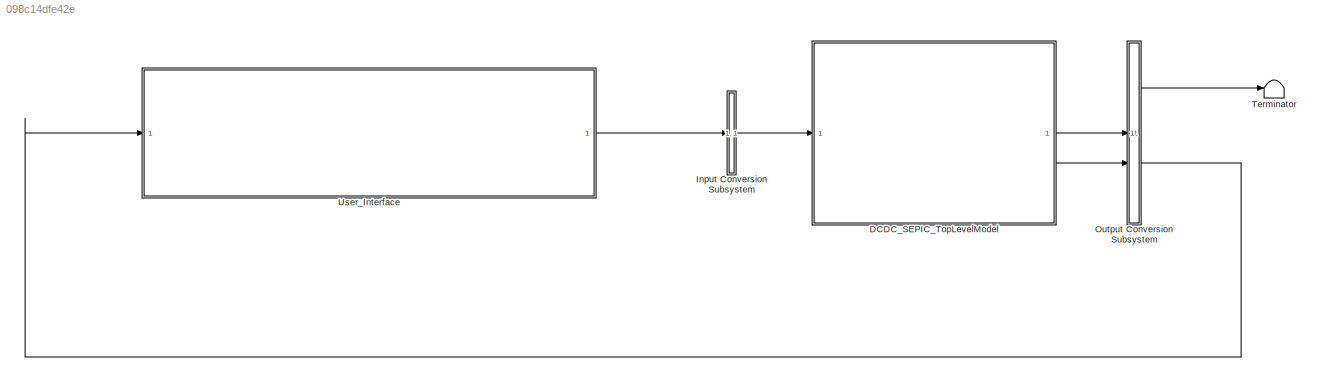
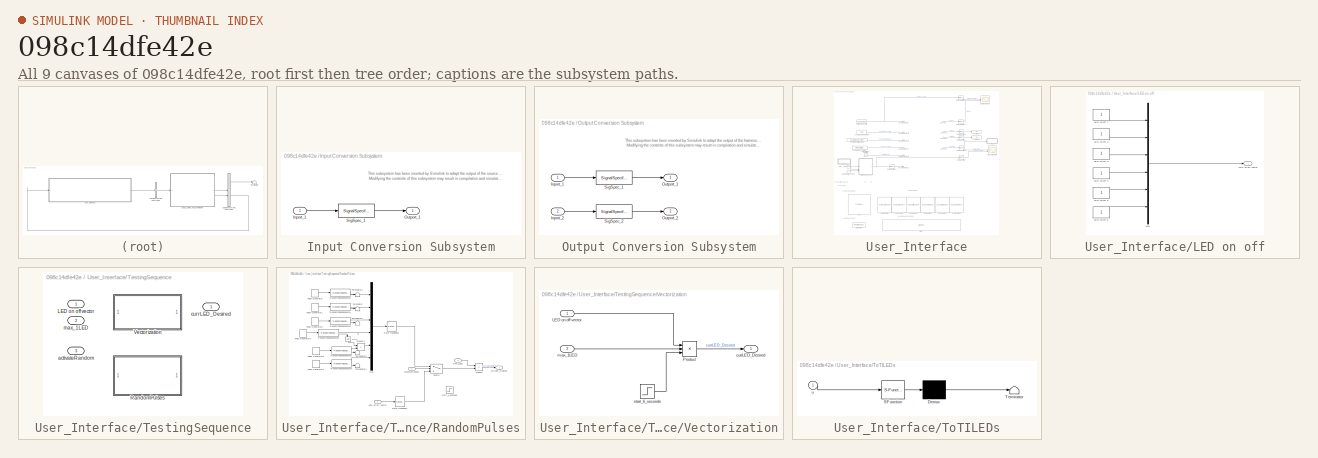
[diagram: thumbnail index - all 9 canvases of the model, root first then tree order]
MODEL slx_098c14dfe42e
KIND model
CONFIG AbsTol = auto
CONFIG EnableMultiTasking = off
CONFIG FixedStep = ts500us
CONFIG MaxStep = auto
CONFIG MinStep = auto
CONFIG RelTol = 1e-3
CONFIG SampleTimeConstraint = Unconstrained
CONFIG SolverName = ode23t
CONFIG StartTime = 0.0
CONFIG StopTime = 10
BLOCK [ModelReference] DCDC_SEPIC_TopLevelModel
  ModelNameDialog = DCDC_SEPIC_TopLevelModel
  ModelReferenceVersion = 8.30
BLOCK [SubSystem] Input Conversion Subsystem
  AttributesFormatString = %<Description>
  Description = Signal spec.\nand routing
  Permissions = ReadOnly
  PermitHierarchicalResolution = ExplicitOnly
  Tag = __SLT_ICS__
  TreatAsGroupedWhenPropagatingVariantConditions = off
  UserDataPersistent = on
BLOCK [Inport] Input Conversion Subsystem/Inport_1
BLOCK [Outport] Input Conversion Subsystem/Outport_1
BLOCK [SignalSpecification] Input Conversion Subsystem/SigSpec_1
  OutDataTypeStr = Bus: UserDefinedValues
  SampleTime = 0.0005
BLOCK [SubSystem] Output Conversion Subsystem
  AttributesFormatString = %<Description>
  Description = Signal spec.\nand routing
  Permissions = ReadOnly
  PermitHierarchicalResolution = ExplicitOnly
  Tag = __SLT_OCS__
  TreatAsGroupedWhenPropagatingVariantConditions = off
  UserDataPersistent = on
BLOCK [Inport] Output Conversion Subsystem/Inport_1
BLOCK [Inport] Output Conversion Subsystem/Inport_2
  Port = 2
BLOCK [Outport] Output Conversion Subsystem/Outport_1
BLOCK [Outport] Output Conversion Subsystem/Outport_2
  Port = 2
BLOCK [SignalSpecification] Output Conversion Subsystem/SigSpec_1
  Dimensions = [1]
  OutDataTypeStr = Bus: AppSoftware
  SampleTime = 0.001
  SignalType = real
  VarSizeSig = No
BLOCK [SignalSpecification] Output Conversion Subsystem/SigSpec_2
  Dimensions = [1]
  OutDataTypeStr = Bus: Sensors
  SampleTime = 0.0005
  SignalType = real
  VarSizeSig = No
BLOCK [Terminator] Terminator
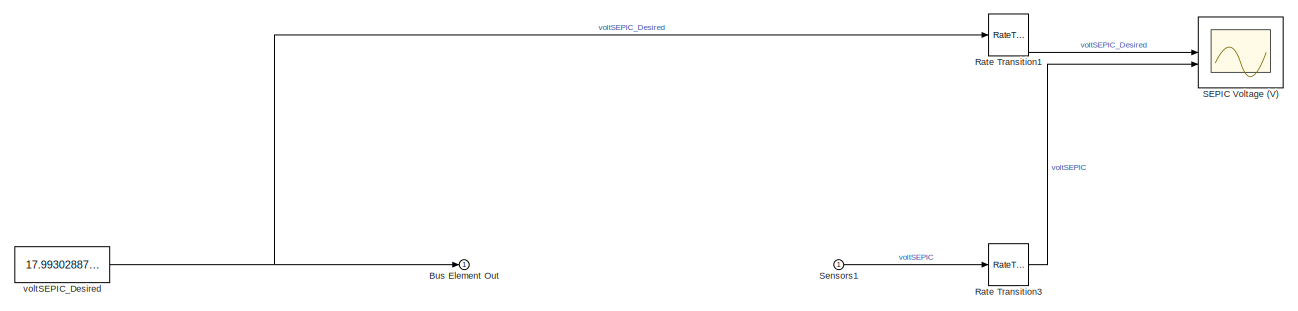
[diagram: User_Interface - part 1/3, full width, top band]
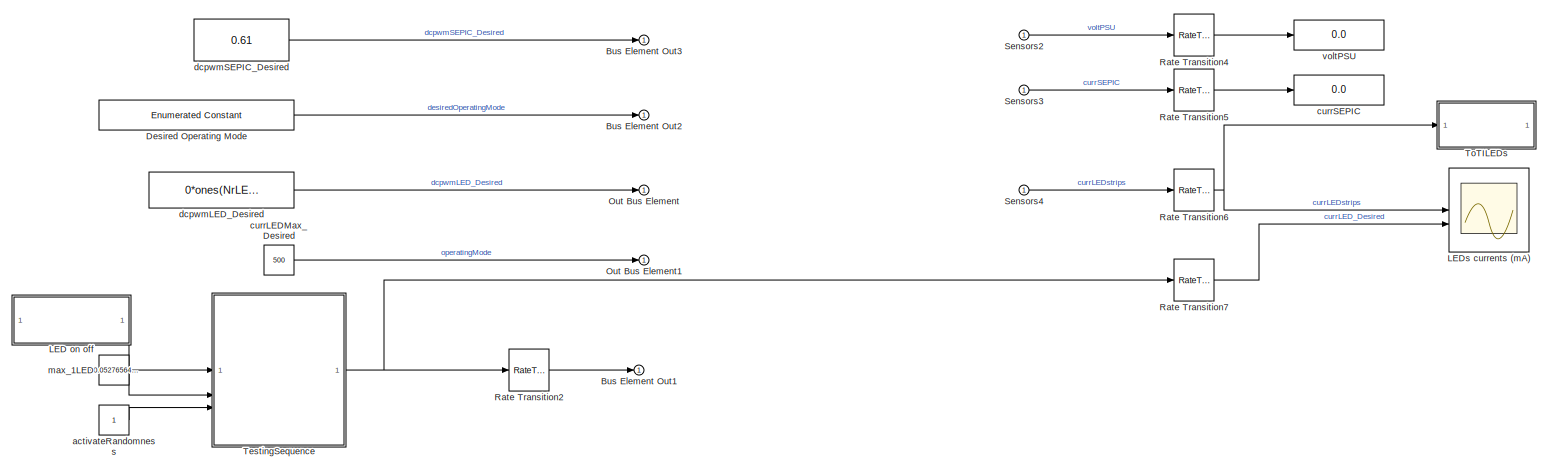
[diagram: User_Interface - part 2/3, full width, middle band]
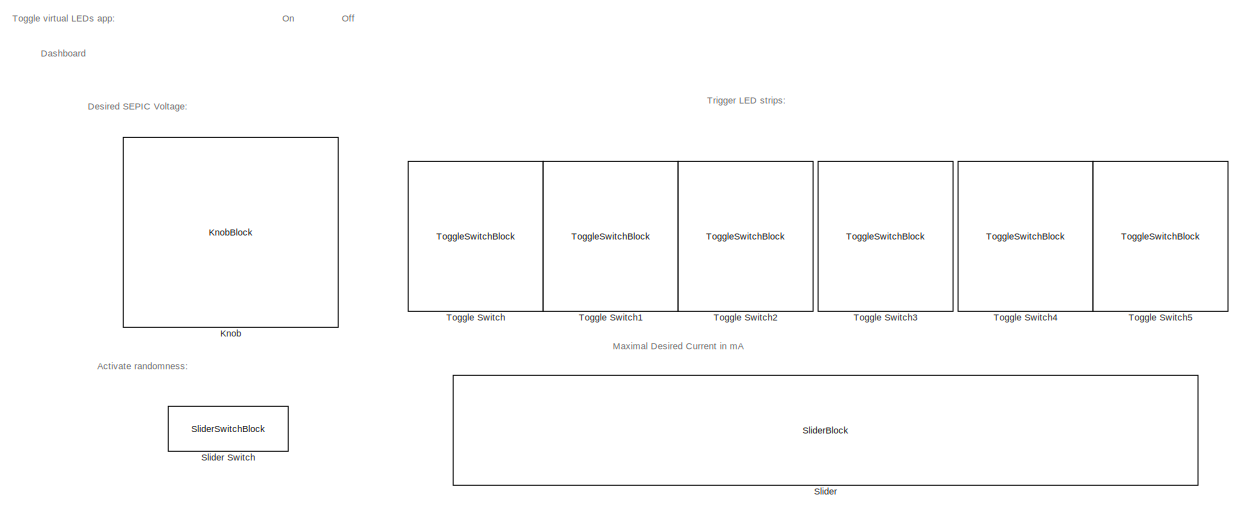
[diagram: User_Interface - part 3/3, full width, bottom band]
BLOCK [SubSystem] User_Interface
BLOCK [Outport] User_Interface/Bus Element Out
BLOCK [Outport] User_Interface/Bus Element Out1
BLOCK [Outport] User_Interface/Bus Element Out2
BLOCK [Outport] User_Interface/Bus Element Out3
BLOCK [Reference] User_Interface/Desired Operating Mode  REF=simulink/Sources/Enumerated
Constant
  SourceBlock = simulink/Sources/Enumerated\nConstant
  SourceType = Enumerated Constant
BLOCK [KnobBlock] User_Interface/Knob
  LabelPosition = Hide
  ScaleMax = 21
  ScaleMin = 9
  TickInterval = 3
BLOCK [SubSystem] User_Interface/LED on off
BLOCK [Constant] User_Interface/LED on off/LED on off 1
  OutDataTypeStr = single
BLOCK [Constant] User_Interface/LED on off/LED on off 2
  OutDataTypeStr = single
BLOCK [Constant] User_Interface/LED on off/LED on off 3
  OutDataTypeStr = single
BLOCK [Constant] User_Interface/LED on off/LED on off 4
  OutDataTypeStr = single
BLOCK [Constant] User_Interface/LED on off/LED on off 5
  OutDataTypeStr = single
BLOCK [Constant] User_Interface/LED on off/LED on off 6
  OutDataTypeStr = single
BLOCK [Outport] User_Interface/LED on off/LED on off vector
BLOCK [Mux] User_Interface/LED on off/Mux
  DisplayOption = bar
  Inputs = 6
BLOCK [Scope] User_Interface/LEDs currents (mA)
  Floating = off
  NumInputPorts = 2
  ScopeSpecificationString = Simulink.scopes.TimeScopeBlockCfg('CurrentConfiguration', extmgr.ConfigurationSet(extmgr.Configuration('Core','General UI',true),extmgr.Configuration('Core','Source UI',true),extmgr.Configuration('Sources','WiredSimulink',true,'DataLoggingVariableName','ScopeData1'),extmgr.Configuration('Visuals','Time Domain',true,'SerializedDisplays',{struct('MinYLimReal','-9.63256','MaxYLimReal','70.08844','YLa...<+2036ch>
BLOCK [Outport] User_Interface/Out Bus Element
BLOCK [Outport] User_Interface/Out Bus Element1
BLOCK [RateTransition] User_Interface/Rate Transition1
  Deterministic = off
  OutPortSampleTime = ts10ms
BLOCK [RateTransition] User_Interface/Rate Transition2
  Deterministic = off
BLOCK [RateTransition] User_Interface/Rate Transition3
  Deterministic = off
  OutPortSampleTime = ts10ms
BLOCK [RateTransition] User_Interface/Rate Transition4
  Deterministic = off
  OutPortSampleTime = ts10ms
BLOCK [RateTransition] User_Interface/Rate Transition5
  Deterministic = off
  OutPortSampleTime = ts10ms
BLOCK [RateTransition] User_Interface/Rate Transition6
  Deterministic = off
  OutPortSampleTime = ts10ms
BLOCK [RateTransition] User_Interface/Rate Transition7
  Deterministic = off
  OutPortSampleTime = ts10ms
BLOCK [Scope] User_Interface/SEPIC Voltage (V)
  Floating = off
  NumInputPorts = 2
  ScopeSpecificationString = Simulink.scopes.TimeScopeBlockCfg('CurrentConfiguration', extmgr.ConfigurationSet(extmgr.Configuration('Core','General UI',true,'FigureColor',[1 1 1]),extmgr.Configuration('Core','Source UI',true),extmgr.Configuration('Sources','WiredSimulink',true,'DataLoggingVariableName','ScopeData1','DataLoggingSaveFormat','StructureWithTime'),extmgr.Configuration('Visuals','Time Domain',true,'SerializedDispla...<+1866ch>
BLOCK [Inport] User_Interface/Sensors1
BLOCK [Inport] User_Interface/Sensors2
BLOCK [Inport] User_Interface/Sensors3
BLOCK [Inport] User_Interface/Sensors4
BLOCK [SliderBlock] User_Interface/Slider
  LabelPosition = Hide
  TickInterval = 10
BLOCK [SliderSwitchBlock] User_Interface/Slider Switch
  LabelPosition = Hide
BLOCK [SubSystem] User_Interface/TestingSequence
  LabelModeActiveChoice = Choice_1
  Variant = on
  VariantControl = Choice
  VariantControlMode = label
BLOCK [Inport] User_Interface/TestingSequence/LED on off vector
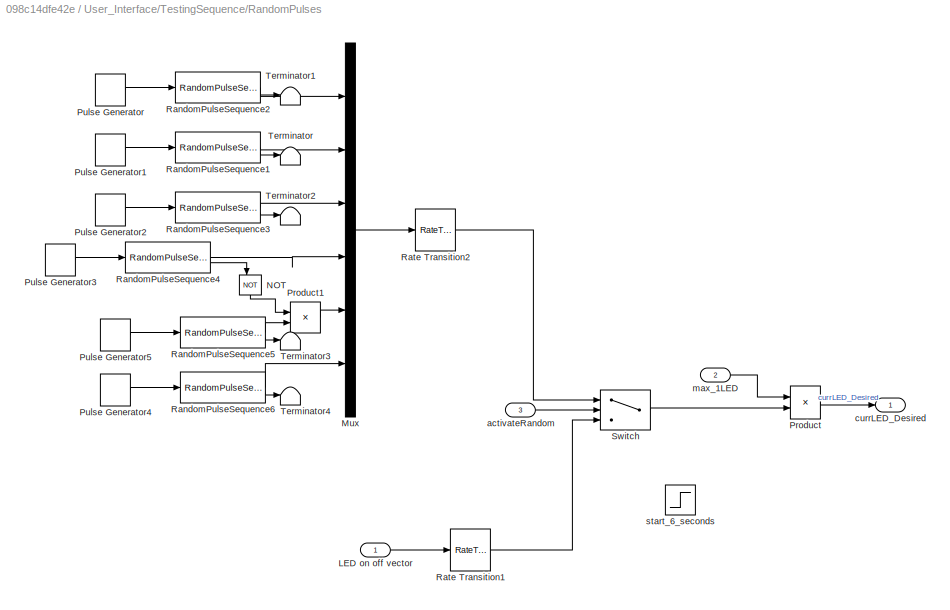
BLOCK [SubSystem] User_Interface/TestingSequence/RandomPulses
  VariantControl = Choice_1
BLOCK [Inport] User_Interface/TestingSequence/RandomPulses/LED on off vector
BLOCK [Mux] User_Interface/TestingSequence/RandomPulses/Mux
  DisplayOption = bar
  Inputs = 6
BLOCK [Logic] User_Interface/TestingSequence/RandomPulses/NOT
  AllPortsSameDT = off
  NameLocation = left
  Operator = NOT
  OutDataTypeStr = boolean
BLOCK [Product] User_Interface/TestingSequence/RandomPulses/Product
  OutDataTypeStr = single
BLOCK [Product] User_Interface/TestingSequence/RandomPulses/Product1
BLOCK [DiscretePulseGenerator] User_Interface/TestingSequence/RandomPulses/Pulse Generator
  Period = 2*(1/ts500us)
  PulseWidth = 1*(1/ts500us)
  SampleTime = ts500us
BLOCK [DiscretePulseGenerator] User_Interface/TestingSequence/RandomPulses/Pulse Generator1
  Period = 2*(1/ts500us)
  PhaseDelay = 1*400
  PulseWidth = 1*(1/ts500us)
  SampleTime = ts500us
BLOCK [DiscretePulseGenerator] User_Interface/TestingSequence/RandomPulses/Pulse Generator2
  Period = 2*(1/ts500us)
  PhaseDelay = 2*400
  PulseWidth = 1*(1/ts500us)
  SampleTime = ts500us
BLOCK [DiscretePulseGenerator] User_Interface/TestingSequence/RandomPulses/Pulse Generator3
  Period = 2*(1/ts500us)
  PhaseDelay = 3*400
  PulseWidth = 1*(1/ts500us)
  SampleTime = ts500us
BLOCK [DiscretePulseGenerator] User_Interface/TestingSequence/RandomPulses/Pulse Generator4
  Period = 2*(1/ts500us)
  PhaseDelay = 5*400
  PulseWidth = 1*(1/ts500us)
  SampleTime = ts500us
BLOCK [DiscretePulseGenerator] User_Interface/TestingSequence/RandomPulses/Pulse Generator5
  Period = 2*(1/ts500us)
  PhaseDelay = 4*400
  PulseWidth = 1*(1/ts500us)
  SampleTime = ts500us
BLOCK [Reference] User_Interface/TestingSequence/RandomPulses/RandomPulseSequence1  REF=SEPIC_utilities/RandomPulseSequence
  SourceBlock = SEPIC_utilities/RandomPulseSequence
BLOCK [Reference] User_Interface/TestingSequence/RandomPulses/RandomPulseSequence2  REF=SEPIC_utilities/RandomPulseSequence
  SourceBlock = SEPIC_utilities/RandomPulseSequence
BLOCK [Reference] User_Interface/TestingSequence/RandomPulses/RandomPulseSequence3  REF=SEPIC_utilities/RandomPulseSequence
  SourceBlock = SEPIC_utilities/RandomPulseSequence
BLOCK [Reference] User_Interface/TestingSequence/RandomPulses/RandomPulseSequence4  REF=SEPIC_utilities/RandomPulseSequence
  SourceBlock = SEPIC_utilities/RandomPulseSequence
BLOCK [Reference] User_Interface/TestingSequence/RandomPulses/RandomPulseSequence5  REF=SEPIC_utilities/RandomPulseSequence
  SourceBlock = SEPIC_utilities/RandomPulseSequence
BLOCK [Reference] User_Interface/TestingSequence/RandomPulses/RandomPulseSequence6  REF=SEPIC_utilities/RandomPulseSequence
  SourceBlock = SEPIC_utilities/RandomPulseSequence
BLOCK [RateTransition] User_Interface/TestingSequence/RandomPulses/Rate Transition1
  Deterministic = off
BLOCK [RateTransition] User_Interface/TestingSequence/RandomPulses/Rate Transition2
  Deterministic = off
BLOCK [Switch] User_Interface/TestingSequence/RandomPulses/Switch
  Criteria = u2 ~= 0
  InputSameDT = off
  SaturateOnIntegerOverflow = off
BLOCK [Terminator] User_Interface/TestingSequence/RandomPulses/Terminator
BLOCK [Terminator] User_Interface/TestingSequence/RandomPulses/Terminator1
BLOCK [Terminator] User_Interface/TestingSequence/RandomPulses/Terminator2
BLOCK [Terminator] User_Interface/TestingSequence/RandomPulses/Terminator3
BLOCK [Terminator] User_Interface/TestingSequence/RandomPulses/Terminator4
BLOCK [Inport] User_Interface/TestingSequence/RandomPulses/activateRandom
  Port = 3
BLOCK [Outport] User_Interface/TestingSequence/RandomPulses/currLED_Desired
BLOCK [Inport] User_Interface/TestingSequence/RandomPulses/max_1LED
  Port = 2
BLOCK [Step] User_Interface/TestingSequence/RandomPulses/start_6_seconds
  Commented = on
  SampleTime = ts1ms
  Time = 6
BLOCK [SubSystem] User_Interface/TestingSequence/Vectorization
  VariantControl = Choice
BLOCK [Inport] User_Interface/TestingSequence/Vectorization/LED on off vector
BLOCK [Product] User_Interface/TestingSequence/Vectorization/Product
  Inputs = 3
  OutDataTypeStr = single
BLOCK [Outport] User_Interface/TestingSequence/Vectorization/currLED_Desired
BLOCK [Inport] User_Interface/TestingSequence/Vectorization/max_1LED
  Port = 2
BLOCK [Step] User_Interface/TestingSequence/Vectorization/start_6_seconds
  SampleTime = ts1ms
  Time = 6
BLOCK [Inport] User_Interface/TestingSequence/activateRandom
  Port = 3
BLOCK [Outport] User_Interface/TestingSequence/currLED_Desired
BLOCK [Inport] User_Interface/TestingSequence/max_1LED
  Port = 2
BLOCK [SubSystem] User_Interface/ToTILEDs
  Commented = on
  ErrorFcn = Stateflow.Translate.translate
  PermitHierarchicalResolution = ExplicitOnly
  SFBlockType = MATLAB Function
  TreatAsAtomicUnit = on
BLOCK [Demux] User_Interface/ToTILEDs/ Demux 
  Outputs = 1
BLOCK [S-Function] User_Interface/ToTILEDs/ SFunction 
  EnableBusSupport = off
  FunctionName = sf_sfun
  PortCounts = [1 1]
  SFcnIsStateOwnerBlock = off
  SFunctionDeploymentMode = off
  Tag = Stateflow S-Function 2
BLOCK [Terminator] User_Interface/ToTILEDs/ Terminator 
BLOCK [Inport] User_Interface/ToTILEDs/u
BLOCK [ToggleSwitchBlock] User_Interface/Toggle Switch
  LabelPosition = Hide
BLOCK [ToggleSwitchBlock] User_Interface/Toggle Switch1
  LabelPosition = Hide
BLOCK [ToggleSwitchBlock] User_Interface/Toggle Switch2
  LabelPosition = Hide
BLOCK [ToggleSwitchBlock] User_Interface/Toggle Switch3
  LabelPosition = Hide
BLOCK [ToggleSwitchBlock] User_Interface/Toggle Switch4
  LabelPosition = Hide
BLOCK [ToggleSwitchBlock] User_Interface/Toggle Switch5
  LabelPosition = Hide
BLOCK [Constant] User_Interface/activateRandomness
  OutDataTypeStr = single
BLOCK [Constant] User_Interface/currLEDMax_Desired
  OutDataTypeStr = single
  Value = 500
BLOCK [Display] User_Interface/currSEPIC
  Decimation = 1
BLOCK [Constant] User_Interface/dcpwmLED_Desired
  OutDataTypeStr = single
  Value = 0*ones(NrLEDStrips,1)
BLOCK [Constant] User_Interface/dcpwmSEPIC_Desired
  OutDataTypeStr = single
  Value = 0.61
BLOCK [Constant] User_Interface/max_1LED
  OutDataTypeStr = single
  Value = 60.05276564774381
BLOCK [Display] User_Interface/voltPSU
  Decimation = 1
BLOCK [Constant] User_Interface/voltSEPIC_Desired
  OutDataTypeStr = single
  Value = 17.99302887460654
ANNOTATION Input Conversion Subsystem: This subsystem has been inserted by Simulink to adapt the output of the source blocks to the interface required by the harnessed component. Modifying the contents of this subsystem may result in compilation and simulation failure.
ANNOTATION Output Conversion Subsystem: This subsystem has been inserted by Simulink to adapt the output of the harnessed component to the interface required by the sink blocks. Modifying the contents of this subsystem may result in compilation and simulation failure.
ANNOTATION User_Interface: Off
ANNOTATION User_Interface: On
ANNOTATION User_Interface: Activate randomness:
ANNOTATION User_Interface: Dashboard
ANNOTATION User_Interface: Desired SEPIC Voltage:
ANNOTATION User_Interface: Maximal Desired Current in mA
ANNOTATION User_Interface: Toggle virtual LEDs app:
ANNOTATION User_Interface: Trigger LED strips:
LINE DCDC_SEPIC_TopLevelModel:1 -> Output Conversion Subsystem:1
LINE DCDC_SEPIC_TopLevelModel:2 -> Output Conversion Subsystem:2
LINE Input Conversion Subsystem/Inport_1:1 -> Input Conversion Subsystem/SigSpec_1:1
LINE Input Conversion Subsystem/SigSpec_1:1 -> Input Conversion Subsystem/Outport_1:1
LINE Input Conversion Subsystem:1 -> DCDC_SEPIC_TopLevelModel:1
LINE Output Conversion Subsystem/Inport_1:1 -> Output Conversion Subsystem/SigSpec_1:1
LINE Output Conversion Subsystem/Inport_2:1 -> Output Conversion Subsystem/SigSpec_2:1
LINE Output Conversion Subsystem/SigSpec_1:1 -> Output Conversion Subsystem/Outport_1:1
LINE Output Conversion Subsystem/SigSpec_2:1 -> Output Conversion Subsystem/Outport_2:1
LINE Output Conversion Subsystem:1 -> Terminator:1
LINE Output Conversion Subsystem:2 -> User_Interface:1
LINE User_Interface/Desired Operating Mode:1 -> User_Interface/Bus Element Out2:1
LINE User_Interface/LED on off/LED on off 1:1 -> User_Interface/LED on off/Mux:1
LINE User_Interface/LED on off/LED on off 2:1 -> User_Interface/LED on off/Mux:2
LINE User_Interface/LED on off/LED on off 3:1 -> User_Interface/LED on off/Mux:3
LINE User_Interface/LED on off/LED on off 4:1 -> User_Interface/LED on off/Mux:4
LINE User_Interface/LED on off/LED on off 5:1 -> User_Interface/LED on off/Mux:5
LINE User_Interface/LED on off/LED on off 6:1 -> User_Interface/LED on off/Mux:6
LINE User_Interface/LED on off/Mux:1 -> User_Interface/LED on off/LED on off vector:1
LINE User_Interface/LED on off:1 -> User_Interface/TestingSequence:1
LINE User_Interface/Rate Transition1:1 -> User_Interface/SEPIC Voltage (V):1
LINE User_Interface/Rate Transition2:1 -> User_Interface/Bus Element Out1:1
LINE User_Interface/Rate Transition3:1 -> User_Interface/SEPIC Voltage (V):2
LINE User_Interface/Rate Transition4:1 -> User_Interface/voltPSU:1
LINE User_Interface/Rate Transition5:1 -> User_Interface/currSEPIC:1
NET User_Interface/Rate Transition6:1 -> User_Interface/LEDs currents (mA):1, User_Interface/ToTILEDs:1
LINE User_Interface/Rate Transition7:1 -> User_Interface/LEDs currents (mA):2
LINE User_Interface/Sensors1:1 -> User_Interface/Rate Transition3:1
LINE User_Interface/Sensors2:1 -> User_Interface/Rate Transition4:1
LINE User_Interface/Sensors3:1 -> User_Interface/Rate Transition5:1
LINE User_Interface/Sensors4:1 -> User_Interface/Rate Transition6:1
LINE User_Interface/TestingSequence/RandomPulses/LED on off vector:1 -> User_Interface/TestingSequence/RandomPulses/Rate Transition1:1
LINE User_Interface/TestingSequence/RandomPulses/Mux:1 -> User_Interface/TestingSequence/RandomPulses/Rate Transition2:1
LINE User_Interface/TestingSequence/RandomPulses/NOT:1 -> User_Interface/TestingSequence/RandomPulses/Product1:1
LINE User_Interface/TestingSequence/RandomPulses/Product1:1 -> User_Interface/TestingSequence/RandomPulses/Mux:5
LINE User_Interface/TestingSequence/RandomPulses/Product:1 -> User_Interface/TestingSequence/RandomPulses/currLED_Desired:1
LINE User_Interface/TestingSequence/RandomPulses/Pulse Generator1:1 -> User_Interface/TestingSequence/RandomPulses/RandomPulseSequence1:1
LINE User_Interface/TestingSequence/RandomPulses/Pulse Generator2:1 -> User_Interface/TestingSequence/RandomPulses/RandomPulseSequence3:1
LINE User_Interface/TestingSequence/RandomPulses/Pulse Generator3:1 -> User_Interface/TestingSequence/RandomPulses/RandomPulseSequence4:1
LINE User_Interface/TestingSequence/RandomPulses/Pulse Generator4:1 -> User_Interface/TestingSequence/RandomPulses/RandomPulseSequence6:1
LINE User_Interface/TestingSequence/RandomPulses/Pulse Generator5:1 -> User_Interface/TestingSequence/RandomPulses/RandomPulseSequence5:1
LINE User_Interface/TestingSequence/RandomPulses/Pulse Generator:1 -> User_Interface/TestingSequence/RandomPulses/RandomPulseSequence2:1
LINE User_Interface/TestingSequence/RandomPulses/RandomPulseSequence1:1 -> User_Interface/TestingSequence/RandomPulses/Mux:2
LINE User_Interface/TestingSequence/RandomPulses/RandomPulseSequence1:2 -> User_Interface/TestingSequence/RandomPulses/Terminator:1
LINE User_Interface/TestingSequence/RandomPulses/RandomPulseSequence2:1 -> User_Interface/TestingSequence/RandomPulses/Mux:1
LINE User_Interface/TestingSequence/RandomPulses/RandomPulseSequence2:2 -> User_Interface/TestingSequence/RandomPulses/Terminator1:1
LINE User_Interface/TestingSequence/RandomPulses/RandomPulseSequence3:1 -> User_Interface/TestingSequence/RandomPulses/Mux:3
LINE User_Interface/TestingSequence/RandomPulses/RandomPulseSequence3:2 -> User_Interface/TestingSequence/RandomPulses/Terminator2:1
LINE User_Interface/TestingSequence/RandomPulses/RandomPulseSequence4:1 -> User_Interface/TestingSequence/RandomPulses/Mux:4
LINE User_Interface/TestingSequence/RandomPulses/RandomPulseSequence4:2 -> User_Interface/TestingSequence/RandomPulses/NOT:1
LINE User_Interface/TestingSequence/RandomPulses/RandomPulseSequence5:1 -> User_Interface/TestingSequence/RandomPulses/Product1:2
LINE User_Interface/TestingSequence/RandomPulses/RandomPulseSequence5:2 -> User_Interface/TestingSequence/RandomPulses/Terminator3:1
LINE User_Interface/TestingSequence/RandomPulses/RandomPulseSequence6:1 -> User_Interface/TestingSequence/RandomPulses/Mux:6
LINE User_Interface/TestingSequence/RandomPulses/RandomPulseSequence6:2 -> User_Interface/TestingSequence/RandomPulses/Terminator4:1
LINE User_Interface/TestingSequence/RandomPulses/Rate Transition1:1 -> User_Interface/TestingSequence/RandomPulses/Switch:3
LINE User_Interface/TestingSequence/RandomPulses/Rate Transition2:1 -> User_Interface/TestingSequence/RandomPulses/Switch:1
LINE User_Interface/TestingSequence/RandomPulses/Switch:1 -> User_Interface/TestingSequence/RandomPulses/Product:2
LINE User_Interface/TestingSequence/RandomPulses/activateRandom:1 -> User_Interface/TestingSequence/RandomPulses/Switch:2
LINE User_Interface/TestingSequence/RandomPulses/max_1LED:1 -> User_Interface/TestingSequence/RandomPulses/Product:1
LINE User_Interface/TestingSequence/Vectorization/LED on off vector:1 -> User_Interface/TestingSequence/Vectorization/Product:1
LINE User_Interface/TestingSequence/Vectorization/Product:1 -> User_Interface/TestingSequence/Vectorization/currLED_Desired:1
LINE User_Interface/TestingSequence/Vectorization/max_1LED:1 -> User_Interface/TestingSequence/Vectorization/Product:2
LINE User_Interface/TestingSequence/Vectorization/start_6_seconds:1 -> User_Interface/TestingSequence/Vectorization/Product:3
NET User_Interface/TestingSequence:1 -> User_Interface/Rate Transition2:1, User_Interface/Rate Transition7:1
LINE User_Interface/activateRandomness:1 -> User_Interface/TestingSequence:3
LINE User_Interface/currLEDMax_Desired:1 -> User_Interface/Out Bus Element1:1
LINE User_Interface/dcpwmLED_Desired:1 -> User_Interface/Out Bus Element:1
LINE User_Interface/dcpwmSEPIC_Desired:1 -> User_Interface/Bus Element Out3:1
LINE User_Interface/max_1LED:1 -> User_Interface/TestingSequence:2
NET User_Interface/voltSEPIC_Desired:1 -> User_Interface/Bus Element Out:1, User_Interface/Rate Transition1:1
LINE User_Interface:1 -> Input Conversion Subsystem:1
note: NET lines group one-source signal fan-out (src -> all destinations, sorted); 1:1 wires keep LINE
CHART User_Interface/ToTILEDs states=1 transitions=1
  STATE_LABEL 'eML_blk_kernel()'
  STATE_LABEL "SCRIPT:\nfunction fcn(u)\n%%%%%%%%%%%%%%%%%%%%%%%%%%%%%%%%%%%%%%%%%%%%%%%%%%%%%%%%%%%%%%%%%%%%%%%%%%%%%%%%\n% Function: fcn()\n% Goal    : Write new values to the groups of LEDs\n% IN      : - u : vector of new values for each LEDs groups\n% IN/OUT  : -\n% OUT     : -\n%%%%%%%%%%%%%%%%%%%%%%%%%%%%%%%%%%%%%%%%%%%%%%%%%%%%%%%%%%%%%%%%%%%%%%%%%%%%%%%%\n  coder.extrinsic('evalin');\n  appObj = evalin('base','ob...<+138ch>"
